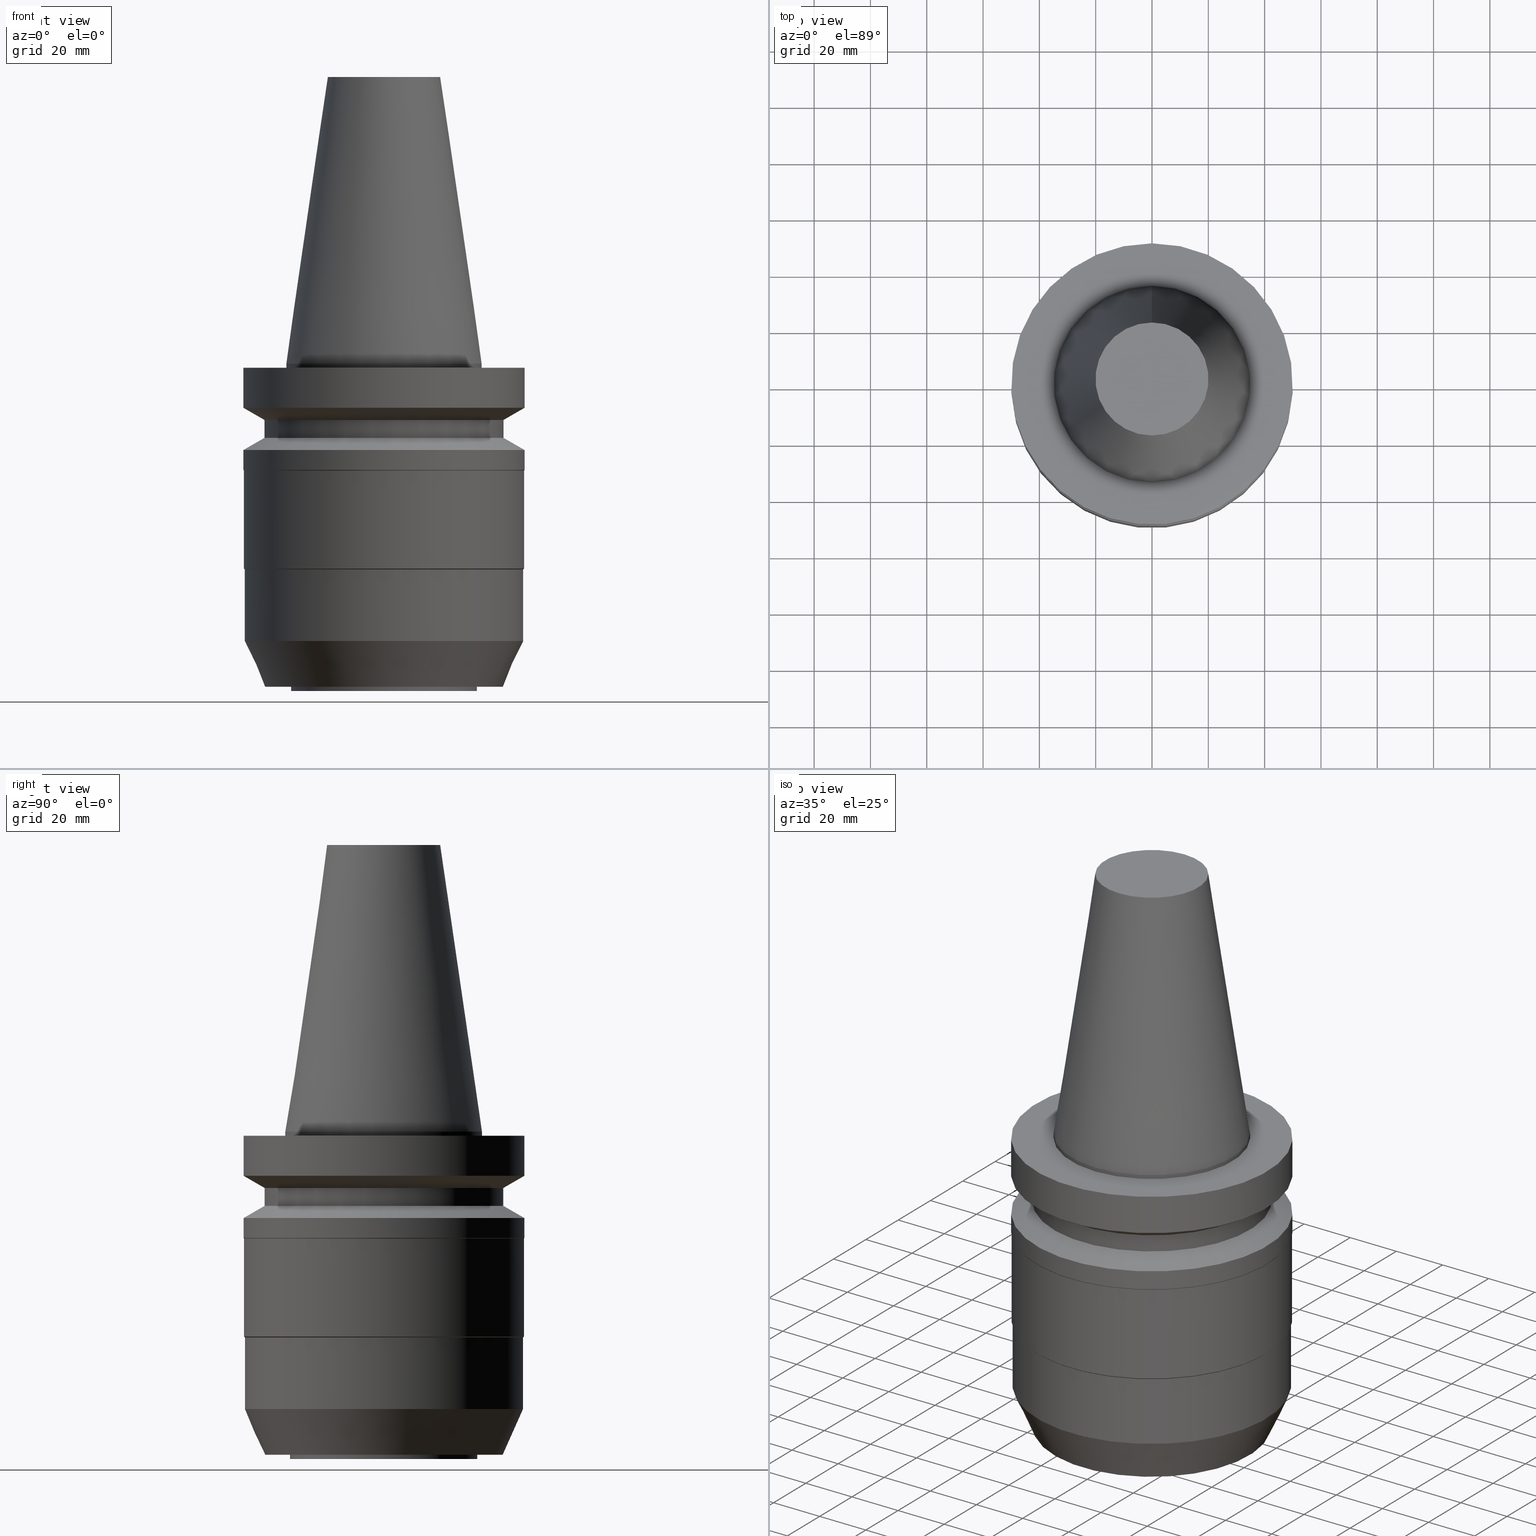
[diagram: canonical four-view strip — front | top / right | iso, engineering-drawing reading convention]
A machine part, canonical four-view strip (front | top / right | iso — engineering-drawing reading convention). The complete STEP part file that produces these views, byte-faithful:
ISO-10303-21;
HEADER;
FILE_DESCRIPTION((''),'1');
FILE_NAME('V:/90_\X2\53D65F9730C730FC30BF\X0\/00_\X2\6DE18DEF30C730FC30BF\X0\/ALL/BBT-BKUS\X2\FF76FF80FF9BFF78FF9E752852A05DE556F3\X0\201801/BBT50-MEGADS/BBT50-MEGA1.500DS-4.5.stp','2018-02-05T01:32:38',(''),(''),'Spatial Interop R21 SP3','Kubotek KeyCreator 2011 V10.0.2 (22737)',' ');
FILE_SCHEMA(('automotive_design'));
ENDSEC;
DATA;
#1=MECHANICAL_DESIGN_GEOMETRIC_PRESENTATION_REPRESENTATION(' ',(#10,#11,#12,#13,#14,#15,#16,#17,#18,#19,#20,#21,#22,#23,#24,#25,#26,#27,#28,#29,#30,#31,#32,#33,#34,#35,#36,#37,#38,#39,#40,#41,#42,#43),#6);
#2=PRODUCT_DEFINITION_CONTEXT('',#44,'design');
#3=APPLICATION_PROTOCOL_DEFINITION('INTERNATIONAL STANDARD','automotive_design',1994,#44);
#4=PRODUCT_CATEGORY_RELATIONSHIP('NONE','NONE',#45,#46);
#5=SHAPE_DEFINITION_REPRESENTATION(#47,#48);
#6= (GEOMETRIC_REPRESENTATION_CONTEXT(3)GLOBAL_UNCERTAINTY_ASSIGNED_CONTEXT((#51))GLOBAL_UNIT_ASSIGNED_CONTEXT((#53,#54,#55))REPRESENTATION_CONTEXT('NONE','WORKSPACE'));
#10=STYLED_ITEM('',(#57,#58),#59);
#11=STYLED_ITEM('',(#60,#61),#62);
#12=STYLED_ITEM('',(#63,#64),#65);
#13=STYLED_ITEM('',(#66,#67),#68);
#14=STYLED_ITEM('',(#69),#70);
#15=STYLED_ITEM('',(#71),#72);
#16=STYLED_ITEM('',(#73,#74),#75);
#17=STYLED_ITEM('',(#76,#77),#78);
#18=STYLED_ITEM('',(#79,#80),#81);
#19=STYLED_ITEM('',(#82),#83);
#20=STYLED_ITEM('',(#84),#85);
#21=STYLED_ITEM('',(#86,#87),#88);
#22=STYLED_ITEM('',(#89),#90);
#23=STYLED_ITEM('',(#91,#92),#93);
#24=STYLED_ITEM('',(#94,#95),#96);
#25=STYLED_ITEM('',(#97,#98),#99);
#26=STYLED_ITEM('',(#100),#101);
#27=STYLED_ITEM('',(#102,#103),#104);
#28=STYLED_ITEM('',(#105),#106);
#29=STYLED_ITEM('',(#107),#108);
#30=STYLED_ITEM('',(#109),#110);
#31=STYLED_ITEM('',(#111,#112),#113);
#32=STYLED_ITEM('',(#114,#115),#116);
#33=STYLED_ITEM('',(#117,#118),#119);
#34=STYLED_ITEM('',(#120),#121);
#35=STYLED_ITEM('',(#122),#123);
#36=STYLED_ITEM('',(#124),#125);
#37=STYLED_ITEM('',(#126),#127);
#38=STYLED_ITEM('',(#128,#129),#130);
#39=STYLED_ITEM('',(#131,#132),#133);
#40=STYLED_ITEM('',(#134),#135);
#41=STYLED_ITEM('',(#136),#137);
#42=STYLED_ITEM('',(#138),#139);
#43=STYLED_ITEM('',(#140,#141),#142);
#44=APPLICATION_CONTEXT(' ');
#45=PRODUCT_CATEGORY('part','NONE');
#46=PRODUCT_RELATED_PRODUCT_CATEGORY('detail',' ',(#143));
#47=PRODUCT_DEFINITION_SHAPE('NONE','NONE',#144);
#48=ADVANCED_BREP_SHAPE_REPRESENTATION('Unnamed[1]',(#93,#145),#6);
#51=UNCERTAINTY_MEASURE_WITH_UNIT(LENGTH_MEASURE(1.0E-006),#53,'','');
#53= (CONVERSION_BASED_UNIT('MILLIMETRE',#148)LENGTH_UNIT()NAMED_UNIT(#151));
#54= (NAMED_UNIT(#153)PLANE_ANGLE_UNIT()SI_UNIT($,.RADIAN.));
#55= (NAMED_UNIT(#153)SOLID_ANGLE_UNIT()SI_UNIT($,.STERADIAN.));
#57=PRESENTATION_STYLE_ASSIGNMENT((#159));
#58=PRESENTATION_STYLE_ASSIGNMENT((#160));
#59=ADVANCED_FACE('Unnamed[1]',(#161,#162),#163,.T.);
#60=PRESENTATION_STYLE_ASSIGNMENT((#164));
#61=PRESENTATION_STYLE_ASSIGNMENT((#165));
#62=ADVANCED_FACE('Unnamed[1]',(#166,#167),#168,.T.);
#63=PRESENTATION_STYLE_ASSIGNMENT((#169));
#64=PRESENTATION_STYLE_ASSIGNMENT((#170));
#65=ADVANCED_FACE('Unnamed[1]',(#171,#172),#173,.T.);
#66=PRESENTATION_STYLE_ASSIGNMENT((#174));
#67=PRESENTATION_STYLE_ASSIGNMENT((#175));
#68=ADVANCED_FACE('Unnamed[1]',(#176,#177),#178,.T.);
#69=PRESENTATION_STYLE_ASSIGNMENT((#179));
#70=EDGE_CURVE('Unnamed[1]',#180,#180,#181,.T.);
#71=PRESENTATION_STYLE_ASSIGNMENT((#182));
#72=EDGE_CURVE('Unnamed[1]',#183,#183,#184,.T.);
#73=PRESENTATION_STYLE_ASSIGNMENT((#185));
#74=PRESENTATION_STYLE_ASSIGNMENT((#186));
#75=ADVANCED_FACE('Unnamed[1]',(#187,#188),#189,.T.);
#76=PRESENTATION_STYLE_ASSIGNMENT((#190));
#77=PRESENTATION_STYLE_ASSIGNMENT((#191));
#78=ADVANCED_FACE('Unnamed[1]',(#192,#193),#194,.T.);
#79=PRESENTATION_STYLE_ASSIGNMENT((#195));
#80=PRESENTATION_STYLE_ASSIGNMENT((#196));
#81=ADVANCED_FACE('Unnamed[1]',(#197,#198),#199,.T.);
#82=PRESENTATION_STYLE_ASSIGNMENT((#200));
#83=EDGE_CURVE('Unnamed[1]',#201,#201,#202,.T.);
#84=PRESENTATION_STYLE_ASSIGNMENT((#203));
#85=EDGE_CURVE('Unnamed[1]',#204,#204,#205,.T.);
#86=PRESENTATION_STYLE_ASSIGNMENT((#206));
#87=PRESENTATION_STYLE_ASSIGNMENT((#207));
#88=ADVANCED_FACE('Unnamed[1]',(#208,#209),#210,.T.);
#89=PRESENTATION_STYLE_ASSIGNMENT((#211));
#90=EDGE_CURVE('Unnamed[1]',#212,#212,#213,.T.);
#91=PRESENTATION_STYLE_ASSIGNMENT((#214));
#92=PRESENTATION_STYLE_ASSIGNMENT((#215));
#93=MANIFOLD_SOLID_BREP('Unnamed[1]',#216);
#94=PRESENTATION_STYLE_ASSIGNMENT((#217));
#95=PRESENTATION_STYLE_ASSIGNMENT((#218));
#96=ADVANCED_FACE('Unnamed[1]',(#219,#220),#221,.T.);
#97=PRESENTATION_STYLE_ASSIGNMENT((#222));
#98=PRESENTATION_STYLE_ASSIGNMENT((#223));
#99=ADVANCED_FACE('Unnamed[1]',(#224,#225),#226,.T.);
#100=PRESENTATION_STYLE_ASSIGNMENT((#227));
#101=EDGE_CURVE('Unnamed[1]',#228,#228,#229,.T.);
#102=PRESENTATION_STYLE_ASSIGNMENT((#230));
#103=PRESENTATION_STYLE_ASSIGNMENT((#231));
#104=ADVANCED_FACE('Unnamed[1]',(#232,#233),#234,.T.);
#105=PRESENTATION_STYLE_ASSIGNMENT((#235));
#106=EDGE_CURVE('Unnamed[1]',#236,#236,#237,.T.);
#107=PRESENTATION_STYLE_ASSIGNMENT((#238));
#108=EDGE_CURVE('Unnamed[1]',#239,#239,#240,.T.);
#109=PRESENTATION_STYLE_ASSIGNMENT((#241));
#110=EDGE_CURVE('Unnamed[1]',#242,#242,#243,.T.);
#111=PRESENTATION_STYLE_ASSIGNMENT((#244));
#112=PRESENTATION_STYLE_ASSIGNMENT((#245));
#113=ADVANCED_FACE('Unnamed[1]',(#246,#247),#248,.T.);
#114=PRESENTATION_STYLE_ASSIGNMENT((#249));
#115=PRESENTATION_STYLE_ASSIGNMENT((#250));
#116=ADVANCED_FACE('Unnamed[1]',(#251),#252,.T.);
#117=PRESENTATION_STYLE_ASSIGNMENT((#253));
#118=PRESENTATION_STYLE_ASSIGNMENT((#254));
#119=ADVANCED_FACE('Unnamed[1]',(#255),#256,.T.);
#120=PRESENTATION_STYLE_ASSIGNMENT((#257));
#121=EDGE_CURVE('Unnamed[1]',#258,#258,#259,.T.);
#122=PRESENTATION_STYLE_ASSIGNMENT((#260));
#123=EDGE_CURVE('Unnamed[1]',#261,#261,#262,.T.);
#124=PRESENTATION_STYLE_ASSIGNMENT((#263));
#125=EDGE_CURVE('Unnamed[1]',#264,#264,#265,.T.);
#126=PRESENTATION_STYLE_ASSIGNMENT((#266));
#127=EDGE_CURVE('Unnamed[1]',#267,#267,#268,.T.);
#128=PRESENTATION_STYLE_ASSIGNMENT((#269));
#129=PRESENTATION_STYLE_ASSIGNMENT((#270));
#130=ADVANCED_FACE('Unnamed[1]',(#271,#272),#273,.T.);
#131=PRESENTATION_STYLE_ASSIGNMENT((#274));
#132=PRESENTATION_STYLE_ASSIGNMENT((#275));
#133=ADVANCED_FACE('Unnamed[1]',(#276,#277),#278,.T.);
#134=PRESENTATION_STYLE_ASSIGNMENT((#279));
#135=EDGE_CURVE('Unnamed[1]',#280,#280,#281,.T.);
#136=PRESENTATION_STYLE_ASSIGNMENT((#282));
#137=EDGE_CURVE('Unnamed[1]',#283,#283,#284,.T.);
#138=PRESENTATION_STYLE_ASSIGNMENT((#285));
#139=EDGE_CURVE('Unnamed[1]',#286,#286,#287,.T.);
#140=PRESENTATION_STYLE_ASSIGNMENT((#288));
#141=PRESENTATION_STYLE_ASSIGNMENT((#289));
#142=ADVANCED_FACE('Unnamed[1]',(#290,#291),#292,.T.);
#143=PRODUCT('Unnamed[1]','Unnamed[1]','PART-Unnamed[1]-DESC',(#293));
#144=PRODUCT_DEFINITION('NONE','NONE',#294,#2);
#145=AXIS2_PLACEMENT_3D('',#295,#296,#297);
#148=LENGTH_MEASURE_WITH_UNIT(LENGTH_MEASURE(1.0),#298);
#151=DIMENSIONAL_EXPONENTS(1.0,0.0,0.0,0.0,0.0,0.0,0.0);
#153=DIMENSIONAL_EXPONENTS(0.0,0.0,0.0,0.0,0.0,0.0,0.0);
#159=SURFACE_STYLE_USAGE(.BOTH.,#299);
#160=CURVE_STYLE('',#300,POSITIVE_LENGTH_MEASURE(1000.0),#301);
#161=FACE_BOUND('',#302,.T.);
#162=FACE_BOUND('',#303,.T.);
#163=CYLINDRICAL_SURFACE('',#304,50.0);
#164=SURFACE_STYLE_USAGE(.BOTH.,#305);
#165=CURVE_STYLE('',#306,POSITIVE_LENGTH_MEASURE(1000.0),#307);
#166=FACE_BOUND('',#308,.T.);
#167=FACE_BOUND('',#309,.T.);
#168=CONICAL_SURFACE('',#310,46.25,1.04719755108882);
#169=SURFACE_STYLE_USAGE(.BOTH.,#311);
#170=CURVE_STYLE('',#312,POSITIVE_LENGTH_MEASURE(1000.0),#313);
#171=FACE_BOUND('',#314,.T.);
#172=FACE_BOUND('',#315,.T.);
#173=CYLINDRICAL_SURFACE('',#316,49.5);
#174=SURFACE_STYLE_USAGE(.BOTH.,#317);
#175=CURVE_STYLE('',#318,POSITIVE_LENGTH_MEASURE(1000.0),#319);
#176=FACE_BOUND('',#320,.T.);
#177=FACE_OUTER_BOUND('',#321,.T.);
#178=PLANE('',#322);
#179=CURVE_STYLE('',#323,POSITIVE_LENGTH_MEASURE(1000.0),#324);
#180=VERTEX_POINT('',#325);
#181=CIRCLE('',#326,20.0791666651884);
#182=CURVE_STYLE('',#327,POSITIVE_LENGTH_MEASURE(1000.0),#328);
#183=VERTEX_POINT('',#329);
#184=CIRCLE('',#330,33.2431836657888);
#185=SURFACE_STYLE_USAGE(.BOTH.,#331);
#186=CURVE_STYLE('',#332,POSITIVE_LENGTH_MEASURE(1000.0),#333);
#187=FACE_OUTER_BOUND('',#334,.T.);
#188=FACE_BOUND('',#335,.T.);
#189=PLANE('',#336);
#190=SURFACE_STYLE_USAGE(.BOTH.,#337);
#191=CURVE_STYLE('',#338,POSITIVE_LENGTH_MEASURE(1000.0),#339);
#192=FACE_BOUND('',#340,.T.);
#193=FACE_BOUND('',#341,.T.);
#194=CONICAL_SURFACE('',#342,49.9249999999999,0.523598775597416);
#195=SURFACE_STYLE_USAGE(.BOTH.,#343);
#196=CURVE_STYLE('',#344,POSITIVE_LENGTH_MEASURE(1000.0),#345);
#197=FACE_BOUND('',#346,.T.);
#198=FACE_BOUND('',#347,.T.);
#199=CONICAL_SURFACE('',#348,49.6750000000002,0.785398163391571);
#200=CURVE_STYLE('',#349,POSITIVE_LENGTH_MEASURE(1000.0),#350);
#201=VERTEX_POINT('',#351);
#202=CIRCLE('',#352,50.0);
#203=CURVE_STYLE('',#353,POSITIVE_LENGTH_MEASURE(1000.0),#354);
#204=VERTEX_POINT('',#355);
#205=CIRCLE('',#356,49.4999999999999);
#206=SURFACE_STYLE_USAGE(.BOTH.,#357);
#207=CURVE_STYLE('',#358,POSITIVE_LENGTH_MEASURE(1000.0),#359);
#208=FACE_BOUND('',#360,.T.);
#209=FACE_BOUND('',#361,.T.);
#210=CONICAL_SURFACE('',#362,45.8809601935171,0.418879020478635);
#211=CURVE_STYLE('',#363,POSITIVE_LENGTH_MEASURE(1000.0),#364);
#212=VERTEX_POINT('',#365);
#213=CIRCLE('',#366,33.2431836657888);
#214=SURFACE_STYLE_USAGE(.BOTH.,#367);
#215=CURVE_STYLE('',#368,POSITIVE_LENGTH_MEASURE(1000.0),#369);
#216=CLOSED_SHELL('',(#119,#142,#104,#75,#59,#130,#133,#62,#113,#78,#96,#81,#65,#88,#68,#99,#116));
#217=SURFACE_STYLE_USAGE(.BOTH.,#370);
#218=CURVE_STYLE('',#371,POSITIVE_LENGTH_MEASURE(1000.0),#372);
#219=FACE_BOUND('',#373,.T.);
#220=FACE_BOUND('',#374,.T.);
#221=CYLINDRICAL_SURFACE('',#375,49.8500000000001);
#222=SURFACE_STYLE_USAGE(.BOTH.,#376);
#223=CURVE_STYLE('',#377,POSITIVE_LENGTH_MEASURE(1000.0),#378);
#224=FACE_BOUND('',#379,.T.);
#225=FACE_BOUND('',#380,.T.);
#226=CYLINDRICAL_SURFACE('',#381,33.2431836657888);
#227=CURVE_STYLE('',#382,POSITIVE_LENGTH_MEASURE(1000.0),#383);
#228=VERTEX_POINT('',#384);
#229=CIRCLE('',#385,50.0);
#230=SURFACE_STYLE_USAGE(.BOTH.,#386);
#231=CURVE_STYLE('',#387,POSITIVE_LENGTH_MEASURE(1000.0),#388);
#232=FACE_BOUND('',#389,.T.);
#233=FACE_BOUND('',#390,.T.);
#234=CYLINDRICAL_SURFACE('',#391,34.925);
#235=CURVE_STYLE('',#392,POSITIVE_LENGTH_MEASURE(1000.0),#393);
#236=VERTEX_POINT('',#394);
#237=CIRCLE('',#395,49.5);
#238=CURVE_STYLE('',#396,POSITIVE_LENGTH_MEASURE(1000.0),#397);
#239=VERTEX_POINT('',#398);
#240=CIRCLE('',#399,49.8500000000005);
#241=CURVE_STYLE('',#400,POSITIVE_LENGTH_MEASURE(1000.0),#401);
#242=VERTEX_POINT('',#402);
#243=CIRCLE('',#403,50.0);
#244=SURFACE_STYLE_USAGE(.BOTH.,#404);
#245=CURVE_STYLE('',#405,POSITIVE_LENGTH_MEASURE(1000.0),#406);
#246=FACE_BOUND('',#407,.T.);
#247=FACE_BOUND('',#408,.T.);
#248=CYLINDRICAL_SURFACE('',#409,50.0);
#249=SURFACE_STYLE_USAGE(.BOTH.,#410);
#250=CURVE_STYLE('',#411,POSITIVE_LENGTH_MEASURE(1000.0),#412);
#251=FACE_OUTER_BOUND('',#413,.T.);
#252=PLANE('',#414);
#253=SURFACE_STYLE_USAGE(.BOTH.,#415);
#254=CURVE_STYLE('',#416,POSITIVE_LENGTH_MEASURE(1000.0),#417);
#255=FACE_OUTER_BOUND('',#418,.T.);
#256=PLANE('',#419);
#257=CURVE_STYLE('',#420,POSITIVE_LENGTH_MEASURE(1000.0),#421);
#258=VERTEX_POINT('',#422);
#259=CIRCLE('',#423,50.0);
#260=CURVE_STYLE('',#424,POSITIVE_LENGTH_MEASURE(1000.0),#425);
#261=VERTEX_POINT('',#426);
#262=CIRCLE('',#427,42.5);
#263=CURVE_STYLE('',#428,POSITIVE_LENGTH_MEASURE(1000.0),#429);
#264=VERTEX_POINT('',#430);
#265=CIRCLE('',#431,42.2619203870341);
#266=CURVE_STYLE('',#432,POSITIVE_LENGTH_MEASURE(1000.0),#433);
#267=VERTEX_POINT('',#434);
#268=CIRCLE('',#435,34.925);
#269=SURFACE_STYLE_USAGE(.BOTH.,#436);
#270=CURVE_STYLE('',#437,POSITIVE_LENGTH_MEASURE(1000.0),#438);
#271=FACE_BOUND('',#439,.T.);
#272=FACE_BOUND('',#440,.T.);
#273=CONICAL_SURFACE('',#441,46.25,1.04719755108882);
#274=SURFACE_STYLE_USAGE(.BOTH.,#442);
#275=CURVE_STYLE('',#443,POSITIVE_LENGTH_MEASURE(1000.0),#444);
#276=FACE_BOUND('',#445,.T.);
#277=FACE_BOUND('',#446,.T.);
#278=CYLINDRICAL_SURFACE('',#447,42.5);
#279=CURVE_STYLE('',#448,POSITIVE_LENGTH_MEASURE(1000.0),#449);
#280=VERTEX_POINT('',#450);
#281=CIRCLE('',#451,34.925);
#282=CURVE_STYLE('',#452,POSITIVE_LENGTH_MEASURE(1000.0),#453);
#283=VERTEX_POINT('',#454);
#284=CIRCLE('',#455,42.5);
#285=CURVE_STYLE('',#456,POSITIVE_LENGTH_MEASURE(1000.0),#457);
#286=VERTEX_POINT('',#458);
#287=CIRCLE('',#459,49.8499999999998);
#288=SURFACE_STYLE_USAGE(.BOTH.,#460);
#289=CURVE_STYLE('',#461,POSITIVE_LENGTH_MEASURE(1000.0),#462);
#290=FACE_BOUND('',#463,.T.);
#291=FACE_BOUND('',#464,.T.);
#292=CONICAL_SURFACE('',#465,27.5020833325942,0.144812498253157);
#293=PRODUCT_CONTEXT('',#44,'mechanical');
#294=PRODUCT_DEFINITION_FORMATION_WITH_SPECIFIED_SOURCE(' ','NONE',#143,.NOT_KNOWN.);
#295=CARTESIAN_POINT('',(0.0,0.0,0.0));
#296=DIRECTION('',(0.0,0.0,1.0));
#297=DIRECTION('',(1.0,0.0,0.0));
#298= (NAMED_UNIT(#151)LENGTH_UNIT()SI_UNIT(.MILLI.,.METRE.));
#299=SURFACE_SIDE_STYLE('',(#467));
#300=DRAUGHTING_PRE_DEFINED_CURVE_FONT('continuous');
#301=COLOUR_RGB('',0.0,1.0,0.0);
#302=EDGE_LOOP('',(#468));
#303=EDGE_LOOP('',(#469));
#304=AXIS2_PLACEMENT_3D('',#470,#471,#472);
#305=SURFACE_SIDE_STYLE('',(#473));
#306=DRAUGHTING_PRE_DEFINED_CURVE_FONT('continuous');
#307=COLOUR_RGB('',0.0,1.0,0.0);
#308=EDGE_LOOP('',(#474));
#309=EDGE_LOOP('',(#475));
#310=AXIS2_PLACEMENT_3D('',#476,#477,#478);
#311=SURFACE_SIDE_STYLE('',(#479));
#312=DRAUGHTING_PRE_DEFINED_CURVE_FONT('continuous');
#313=COLOUR_RGB('',0.0,1.0,0.0);
#314=EDGE_LOOP('',(#480));
#315=EDGE_LOOP('',(#481));
#316=AXIS2_PLACEMENT_3D('',#482,#483,#484);
#317=SURFACE_SIDE_STYLE('',(#485));
#318=DRAUGHTING_PRE_DEFINED_CURVE_FONT('continuous');
#319=COLOUR_RGB('',0.0,1.0,0.0);
#320=EDGE_LOOP('',(#486));
#321=EDGE_LOOP('',(#487));
#322=AXIS2_PLACEMENT_3D('',#488,#489,#490);
#323=DRAUGHTING_PRE_DEFINED_CURVE_FONT('continuous');
#324=COLOUR_RGB('',0.0,1.0,0.0);
#325=CARTESIAN_POINT('',(-6.23345220766003E-015,20.0791666651884,101.8));
#326=AXIS2_PLACEMENT_3D('',#491,#492,#493);
#327=DRAUGHTING_PRE_DEFINED_CURVE_FONT('continuous');
#328=COLOUR_RGB('',0.0,1.0,0.0);
#329=CARTESIAN_POINT('',(7.02947262710581E-015,33.2431836657888,-114.8));
#330=AXIS2_PLACEMENT_3D('',#494,#495,#496);
#331=SURFACE_SIDE_STYLE('',(#497));
#332=DRAUGHTING_PRE_DEFINED_CURVE_FONT('continuous');
#333=COLOUR_RGB('',0.0,1.0,0.0);
#334=EDGE_LOOP('',(#498));
#335=EDGE_LOOP('',(#499));
#336=AXIS2_PLACEMENT_3D('',#500,#501,#502);
#337=SURFACE_SIDE_STYLE('',(#503));
#338=DRAUGHTING_PRE_DEFINED_CURVE_FONT('continuous');
#339=COLOUR_RGB('',0.0,1.0,0.0);
#340=EDGE_LOOP('',(#504));
#341=EDGE_LOOP('',(#505));
#342=AXIS2_PLACEMENT_3D('',#506,#507,#508);
#343=SURFACE_SIDE_STYLE('',(#509));
#344=DRAUGHTING_PRE_DEFINED_CURVE_FONT('continuous');
#345=COLOUR_RGB('',0.0,1.0,0.0);
#346=EDGE_LOOP('',(#510));
#347=EDGE_LOOP('',(#511));
#348=AXIS2_PLACEMENT_3D('',#512,#513,#514);
#349=DRAUGHTING_PRE_DEFINED_CURVE_FONT('continuous');
#350=COLOUR_RGB('',0.0,1.0,0.0);
#351=CARTESIAN_POINT('',(2.31092028979915E-015,50.0,-37.7401923788655));
#352=AXIS2_PLACEMENT_3D('',#515,#516,#517);
#353=DRAUGHTING_PRE_DEFINED_CURVE_FONT('continuous');
#354=COLOUR_RGB('',0.0,1.0,0.0);
#355=CARTESIAN_POINT('',(4.4791456678817E-015,49.4999999999999,-73.1500000000042));
#356=AXIS2_PLACEMENT_3D('',#518,#519,#520);
#357=SURFACE_SIDE_STYLE('',(#521));
#358=DRAUGHTING_PRE_DEFINED_CURVE_FONT('continuous');
#359=COLOUR_RGB('',0.0,1.0,0.0);
#360=EDGE_LOOP('',(#522));
#361=EDGE_LOOP('',(#523));
#362=AXIS2_PLACEMENT_3D('',#524,#525,#526);
#363=DRAUGHTING_PRE_DEFINED_CURVE_FONT('continuous');
#364=COLOUR_RGB('',0.0,1.0,0.0);
#365=CARTESIAN_POINT('',(7.12132113704186E-015,33.2431836657888,-116.3));
#366=AXIS2_PLACEMENT_3D('',#527,#528,#529);
#367=SURFACE_SIDE_STYLE('',(#530));
#368=DRAUGHTING_PRE_DEFINED_CURVE_FONT('continuous');
#369=COLOUR_RGB('',0.0,1.0,0.0);
#370=SURFACE_SIDE_STYLE('',(#531));
#371=DRAUGHTING_PRE_DEFINED_CURVE_FONT('continuous');
#372=COLOUR_RGB('',0.0,1.0,0.0);
#373=EDGE_LOOP('',(#532));
#374=EDGE_LOOP('',(#533));
#375=AXIS2_PLACEMENT_3D('',#534,#535,#536);
#376=SURFACE_SIDE_STYLE('',(#537));
#377=DRAUGHTING_PRE_DEFINED_CURVE_FONT('continuous');
#378=COLOUR_RGB('',0.0,1.0,0.0);
#379=EDGE_LOOP('',(#538));
#380=EDGE_LOOP('',(#539));
#381=AXIS2_PLACEMENT_3D('',#540,#541,#542);
#382=DRAUGHTING_PRE_DEFINED_CURVE_FONT('continuous');
#383=COLOUR_RGB('',0.0,1.0,0.0);
#384=CARTESIAN_POINT('',(9.61347737330674E-016,50.0,-15.7));
#385=AXIS2_PLACEMENT_3D('',#543,#544,#545);
#386=SURFACE_SIDE_STYLE('',(#546));
#387=DRAUGHTING_PRE_DEFINED_CURVE_FONT('continuous');
#388=COLOUR_RGB('',0.0,1.0,0.0);
#389=EDGE_LOOP('',(#547));
#390=EDGE_LOOP('',(#548));
#391=AXIS2_PLACEMENT_3D('',#549,#550,#551);
#392=DRAUGHTING_PRE_DEFINED_CURVE_FONT('continuous');
#393=COLOUR_RGB('',0.0,1.0,0.0);
#394=CARTESIAN_POINT('',(6.03401890607593E-015,49.5,-98.543007016832));
#395=AXIS2_PLACEMENT_3D('',#552,#553,#554);
#396=DRAUGHTING_PRE_DEFINED_CURVE_FONT('continuous');
#397=COLOUR_RGB('',0.0,1.0,0.0);
#398=CARTESIAN_POINT('',(4.45771434889633E-015,49.8500000000005,-72.7999999999994));
#399=AXIS2_PLACEMENT_3D('',#555,#556,#557);
#400=DRAUGHTING_PRE_DEFINED_CURVE_FONT('continuous');
#401=COLOUR_RGB('',0.0,1.0,0.0);
#402=CARTESIAN_POINT('',(9.18485099360509E-017,50.0,-1.49999999999999));
#403=AXIS2_PLACEMENT_3D('',#558,#559,#560);
#404=SURFACE_SIDE_STYLE('',(#561));
#405=DRAUGHTING_PRE_DEFINED_CURVE_FONT('continuous');
#406=COLOUR_RGB('',0.0,1.0,0.0);
#407=EDGE_LOOP('',(#562));
#408=EDGE_LOOP('',(#563));
#409=AXIS2_PLACEMENT_3D('',#564,#565,#566);
#410=SURFACE_SIDE_STYLE('',(#567));
#411=DRAUGHTING_PRE_DEFINED_CURVE_FONT('continuous');
#412=COLOUR_RGB('',0.0,1.0,0.0);
#413=EDGE_LOOP('',(#568));
#414=AXIS2_PLACEMENT_3D('',#569,#570,#571);
#415=SURFACE_SIDE_STYLE('',(#572));
#416=DRAUGHTING_PRE_DEFINED_CURVE_FONT('continuous');
#417=COLOUR_RGB('',0.0,1.0,0.0);
#418=EDGE_LOOP('',(#573));
#419=AXIS2_PLACEMENT_3D('',#574,#575,#576);
#420=DRAUGHTING_PRE_DEFINED_CURVE_FONT('continuous');
#421=COLOUR_RGB('',0.0,1.0,0.0);
#422=CARTESIAN_POINT('',(1.87983283669119E-015,50.0,-30.7000000000001));
#423=AXIS2_PLACEMENT_3D('',#577,#578,#579);
#424=DRAUGHTING_PRE_DEFINED_CURVE_FONT('continuous');
#425=COLOUR_RGB('',0.0,1.0,0.0);
#426=CARTESIAN_POINT('',(1.61468902694397E-015,42.5,-26.3698729800001));
#427=AXIS2_PLACEMENT_3D('',#580,#581,#582);
#428=DRAUGHTING_PRE_DEFINED_CURVE_FONT('continuous');
#429=COLOUR_RGB('',0.0,1.0,0.0);
#430=CARTESIAN_POINT('',(7.02947262710581E-015,42.2619203870341,-114.8));
#431=AXIS2_PLACEMENT_3D('',#583,#584,#585);
#432=DRAUGHTING_PRE_DEFINED_CURVE_FONT('continuous');
#433=COLOUR_RGB('',0.0,1.0,0.0);
#434=CARTESIAN_POINT('',(9.18485099360511E-017,34.925,-1.5));
#435=AXIS2_PLACEMENT_3D('',#586,#587,#588);
#436=SURFACE_SIDE_STYLE('',(#589));
#437=DRAUGHTING_PRE_DEFINED_CURVE_FONT('continuous');
#438=COLOUR_RGB('',0.0,1.0,0.0);
#439=EDGE_LOOP('',(#590));
#440=EDGE_LOOP('',(#591));
#441=AXIS2_PLACEMENT_3D('',#592,#593,#594);
#442=SURFACE_SIDE_STYLE('',(#595));
#443=DRAUGHTING_PRE_DEFINED_CURVE_FONT('continuous');
#444=COLOUR_RGB('',0.0,1.0,0.0);
#445=EDGE_LOOP('',(#596));
#446=EDGE_LOOP('',(#597));
#447=AXIS2_PLACEMENT_3D('',#598,#599,#600);
#448=DRAUGHTING_PRE_DEFINED_CURVE_FONT('continuous');
#449=COLOUR_RGB('',0.0,1.0,0.0);
#450=CARTESIAN_POINT('',(-4.30483861169435E-031,34.925,4.27707894602213E-015));
#451=AXIS2_PLACEMENT_3D('',#601,#602,#603);
#452=DRAUGHTING_PRE_DEFINED_CURVE_FONT('continuous');
#453=COLOUR_RGB('',0.0,1.0,0.0);
#454=CARTESIAN_POINT('',(1.2264915470779E-015,42.5,-20.03012702));
#455=AXIS2_PLACEMENT_3D('',#604,#605,#606);
#456=DRAUGHTING_PRE_DEFINED_CURVE_FONT('continuous');
#457=COLOUR_RGB('',0.0,1.0,0.0);
#458=CARTESIAN_POINT('',(2.32682891838008E-015,49.8499999999998,-38.0000000000018));
#459=AXIS2_PLACEMENT_3D('',#607,#608,#609);
#460=SURFACE_SIDE_STYLE('',(#610));
#461=DRAUGHTING_PRE_DEFINED_CURVE_FONT('continuous');
#462=COLOUR_RGB('',0.0,1.0,0.0);
#463=EDGE_LOOP('',(#611));
#464=EDGE_LOOP('',(#612));
#465=AXIS2_PLACEMENT_3D('',#613,#614,#615);
#467=SURFACE_STYLE_FILL_AREA(#616);
#468=ORIENTED_EDGE('',*,*,#101,.F.);
#469=ORIENTED_EDGE('',*,*,#110,.T.);
#470=CARTESIAN_POINT('',(5.26598123633363E-016,1.05319624726673E-015,-8.60000000000002));
#471=DIRECTION('',(6.12323399573677E-017,1.22464679914735E-016,-1.0));
#472=DIRECTION('',(-1.23259516440783E-032,1.0,1.22464679914735E-016));
#473=SURFACE_STYLE_FILL_AREA(#617);
#474=ORIENTED_EDGE('',*,*,#121,.F.);
#475=ORIENTED_EDGE('',*,*,#123,.T.);
#476=CARTESIAN_POINT('',(1.74726093181758E-015,3.49452186363516E-015,-28.5349364900001));
#477=DIRECTION('',(6.12323399573676E-017,1.22464679914735E-016,-1.0));
#478=DIRECTION('',(-1.23259516440783E-032,1.0,1.22464679914735E-016));
#479=SURFACE_STYLE_FILL_AREA(#618);
#480=ORIENTED_EDGE('',*,*,#106,.F.);
#481=ORIENTED_EDGE('',*,*,#85,.T.);
#482=CARTESIAN_POINT('',(5.25658228697881E-015,1.05131645739576E-014,-85.8465035084181));
#483=DIRECTION('',(6.12323399573677E-017,1.22464679914735E-016,-1.0));
#484=DIRECTION('',(-1.23259516440783E-032,1.0,1.22464679914735E-016));
#485=SURFACE_STYLE_FILL_AREA(#619);
#486=ORIENTED_EDGE('',*,*,#72,.F.);
#487=ORIENTED_EDGE('',*,*,#125,.T.);
#488=CARTESIAN_POINT('',(7.02947262710581E-015,37.7525520264115,-114.8));
#489=DIRECTION('',(6.12323399573677E-017,1.22464679914735E-016,-1.0));
#490=DIRECTION('',(-1.23259516440783E-032,1.0,1.22464679914735E-016));
#491=CARTESIAN_POINT('',(-6.23345220766003E-015,-1.24669044153201E-014,101.8));
#492=DIRECTION('',(6.12323399573677E-017,1.22464679914735E-016,-1.0));
#493=DIRECTION('',(-1.23259516440783E-032,1.0,1.22464679914735E-016));
#494=CARTESIAN_POINT('',(7.02947262710581E-015,1.40589452542116E-014,-114.8));
#495=DIRECTION('',(6.12323399573676E-017,1.22464679914735E-016,-1.0));
#496=DIRECTION('',(-1.23259516440783E-032,1.0,1.22464679914735E-016));
#497=SURFACE_STYLE_FILL_AREA(#620);
#498=ORIENTED_EDGE('',*,*,#110,.F.);
#499=ORIENTED_EDGE('',*,*,#127,.T.);
#500=CARTESIAN_POINT('',(9.1848509936051E-017,42.4625,-1.49999999999999));
#501=DIRECTION('',(-6.12323399573677E-017,-1.22464679914735E-016,1.0));
#502=DIRECTION('',(1.23259516440783E-032,-1.0,-1.22464679914735E-016));
#503=SURFACE_STYLE_FILL_AREA(#621);
#504=ORIENTED_EDGE('',*,*,#139,.F.);
#505=ORIENTED_EDGE('',*,*,#83,.T.);
#506=CARTESIAN_POINT('',(2.31887460408962E-015,4.63774920817923E-015,-37.8700961894337));
#507=DIRECTION('',(-6.12323399573677E-017,-1.22464679914735E-016,1.0));
#508=DIRECTION('',(-1.23259516440783E-032,1.0,1.22464679914735E-016));
#509=SURFACE_STYLE_FILL_AREA(#622);
#510=ORIENTED_EDGE('',*,*,#85,.F.);
#511=ORIENTED_EDGE('',*,*,#108,.T.);
#512=CARTESIAN_POINT('',(4.46843000838902E-015,8.93686001677803E-015,-72.9750000000018));
#513=DIRECTION('',(-6.12323399573677E-017,-1.22464679914735E-016,1.0));
#514=DIRECTION('',(-1.23259516440783E-032,1.0,1.22464679914735E-016));
#515=CARTESIAN_POINT('',(2.31092028979915E-015,4.6218405795983E-015,-37.7401923788655));
#516=DIRECTION('',(6.12323399573677E-017,1.22464679914735E-016,-1.0));
#517=DIRECTION('',(-1.23259516440783E-032,1.0,1.22464679914735E-016));
#518=CARTESIAN_POINT('',(4.4791456678817E-015,8.9582913357634E-015,-73.1500000000042));
#519=DIRECTION('',(6.12323399573676E-017,1.22464679914735E-016,-1.0));
#520=DIRECTION('',(-1.23259516440783E-032,1.0,1.22464679914735E-016));
#521=SURFACE_STYLE_FILL_AREA(#623);
#522=ORIENTED_EDGE('',*,*,#125,.F.);
#523=ORIENTED_EDGE('',*,*,#106,.T.);
#524=CARTESIAN_POINT('',(6.53174576659087E-015,1.30634915331817E-014,-106.671503508416));
#525=DIRECTION('',(-6.12323399573677E-017,-1.22464679914735E-016,1.0));
#526=DIRECTION('',(-1.23259516440783E-032,1.0,1.22464679914735E-016));
#527=CARTESIAN_POINT('',(7.12132113704186E-015,1.42426422740837E-014,-116.3));
#528=DIRECTION('',(6.12323399573676E-017,1.22464679914735E-016,-1.0));
#529=DIRECTION('',(-1.23259516440783E-032,1.0,1.22464679914735E-016));
#530=SURFACE_STYLE_FILL_AREA(#624);
#531=SURFACE_STYLE_FILL_AREA(#625);
#532=ORIENTED_EDGE('',*,*,#108,.F.);
#533=ORIENTED_EDGE('',*,*,#139,.T.);
#534=CARTESIAN_POINT('',(3.39227163363821E-015,6.78454326727641E-015,-55.4000000000006));
#535=DIRECTION('',(6.12323399573677E-017,1.22464679914735E-016,-1.0));
#536=DIRECTION('',(-1.23259516440783E-032,1.0,1.22464679914735E-016));
#537=SURFACE_STYLE_FILL_AREA(#626);
#538=ORIENTED_EDGE('',*,*,#90,.F.);
#539=ORIENTED_EDGE('',*,*,#72,.T.);
#540=CARTESIAN_POINT('',(7.07539688207383E-015,1.41507937641477E-014,-115.55));
#541=DIRECTION('',(6.12323399573676E-017,1.22464679914735E-016,-1.0));
#542=DIRECTION('',(-1.23259516440783E-032,1.0,1.22464679914735E-016));
#543=CARTESIAN_POINT('',(9.61347737330675E-016,1.92269547466135E-015,-15.7));
#544=DIRECTION('',(6.12323399573677E-017,1.22464679914735E-016,-1.0));
#545=DIRECTION('',(-1.23259516440783E-032,1.0,1.22464679914735E-016));
#546=SURFACE_STYLE_FILL_AREA(#627);
#547=ORIENTED_EDGE('',*,*,#127,.F.);
#548=ORIENTED_EDGE('',*,*,#135,.T.);
#549=CARTESIAN_POINT('',(4.59242549680257E-017,9.18485099360515E-017,-0.75));
#550=DIRECTION('',(6.12323399573677E-017,1.22464679914735E-016,-1.0));
#551=DIRECTION('',(-1.23259516440783E-032,1.0,1.22464679914735E-016));
#552=CARTESIAN_POINT('',(6.03401890607593E-015,1.20680378121518E-014,-98.543007016832));
#553=DIRECTION('',(6.12323399573677E-017,1.22464679914735E-016,-1.0));
#554=DIRECTION('',(-1.23259516440783E-032,1.0,1.22464679914735E-016));
#555=CARTESIAN_POINT('',(4.45771434889633E-015,8.91542869779266E-015,-72.7999999999994));
#556=DIRECTION('',(6.12323399573677E-017,1.22464679914735E-016,-1.0));
#557=DIRECTION('',(-1.23259516440783E-032,1.0,1.22464679914735E-016));
#558=CARTESIAN_POINT('',(9.18485099360515E-017,1.83697019872103E-016,-1.5));
#559=DIRECTION('',(6.12323399573677E-017,1.22464679914735E-016,-1.0));
#560=DIRECTION('',(-1.23259516440783E-032,1.0,1.22464679914735E-016));
#561=SURFACE_STYLE_FILL_AREA(#628);
#562=ORIENTED_EDGE('',*,*,#83,.F.);
#563=ORIENTED_EDGE('',*,*,#121,.T.);
#564=CARTESIAN_POINT('',(2.09537656324517E-015,4.19075312649034E-015,-34.2200961894328));
#565=DIRECTION('',(6.12323399573677E-017,1.22464679914735E-016,-1.0));
#566=DIRECTION('',(-1.23259516440783E-032,1.0,1.22464679914735E-016));
#567=SURFACE_STYLE_FILL_AREA(#629);
#568=ORIENTED_EDGE('',*,*,#90,.T.);
#569=CARTESIAN_POINT('',(7.12132113704186E-015,16.6215918328944,-116.3));
#570=DIRECTION('',(6.12323399573677E-017,1.22464679914735E-016,-1.0));
#571=DIRECTION('',(-1.23259516440783E-032,1.0,1.22464679914735E-016));
#572=SURFACE_STYLE_FILL_AREA(#630);
#573=ORIENTED_EDGE('',*,*,#70,.F.);
#574=CARTESIAN_POINT('',(-6.23345220766003E-015,10.0395833325942,101.8));
#575=DIRECTION('',(-6.12323399573677E-017,-1.22464679914735E-016,1.0));
#576=DIRECTION('',(1.23259516440783E-032,-1.0,-1.22464679914735E-016));
#577=CARTESIAN_POINT('',(1.87983283669119E-015,3.75966567338238E-015,-30.7000000000001));
#578=DIRECTION('',(6.12323399573677E-017,1.22464679914735E-016,-1.0));
#579=DIRECTION('',(-1.23259516440783E-032,1.0,1.22464679914735E-016));
#580=CARTESIAN_POINT('',(1.61468902694397E-015,3.22937805388794E-015,-26.3698729800001));
#581=DIRECTION('',(6.12323399573677E-017,1.22464679914735E-016,-1.0));
#582=DIRECTION('',(-1.23259516440783E-032,1.0,1.22464679914735E-016));
#583=CARTESIAN_POINT('',(7.02947262710581E-015,1.40589452542116E-014,-114.8));
#584=DIRECTION('',(6.12323399573677E-017,1.22464679914735E-016,-1.0));
#585=DIRECTION('',(-1.23259516440783E-032,1.0,1.22464679914735E-016));
#586=CARTESIAN_POINT('',(9.18485099360515E-017,1.83697019872103E-016,-1.5));
#587=DIRECTION('',(6.12323399573677E-017,1.22464679914735E-016,-1.0));
#588=DIRECTION('',(-1.23259516440783E-032,1.0,1.22464679914735E-016));
#589=SURFACE_STYLE_FILL_AREA(#631);
#590=ORIENTED_EDGE('',*,*,#137,.F.);
#591=ORIENTED_EDGE('',*,*,#101,.T.);
#592=CARTESIAN_POINT('',(1.09391964220429E-015,2.18783928440857E-015,-17.86506351));
#593=DIRECTION('',(-6.12323399573676E-017,-1.22464679914735E-016,1.0));
#594=DIRECTION('',(-1.23259516440783E-032,1.0,1.22464679914735E-016));
#595=SURFACE_STYLE_FILL_AREA(#632);
#596=ORIENTED_EDGE('',*,*,#123,.F.);
#597=ORIENTED_EDGE('',*,*,#137,.T.);
#598=CARTESIAN_POINT('',(1.42059028701093E-015,2.84118057402186E-015,-23.2));
#599=DIRECTION('',(6.12323399573677E-017,1.22464679914735E-016,-1.0));
#600=DIRECTION('',(-1.23259516440783E-032,1.0,1.22464679914735E-016));
#601=CARTESIAN_POINT('',(0.0,0.0,0.0));
#602=DIRECTION('',(6.12323399573677E-017,1.22464679914735E-016,-1.0));
#603=DIRECTION('',(-1.23259516440783E-032,1.0,1.22464679914735E-016));
#604=CARTESIAN_POINT('',(1.2264915470779E-015,2.45298309415579E-015,-20.03012702));
#605=DIRECTION('',(6.12323399573677E-017,1.22464679914735E-016,-1.0));
#606=DIRECTION('',(-1.23259516440783E-032,1.0,1.22464679914735E-016));
#607=CARTESIAN_POINT('',(2.32682891838008E-015,4.65365783676016E-015,-38.0000000000018));
#608=DIRECTION('',(6.12323399573677E-017,1.22464679914735E-016,-1.0));
#609=DIRECTION('',(-1.23259516440783E-032,1.0,1.22464679914735E-016));
#610=SURFACE_STYLE_FILL_AREA(#633);
#611=ORIENTED_EDGE('',*,*,#135,.F.);
#612=ORIENTED_EDGE('',*,*,#70,.T.);
#613=CARTESIAN_POINT('',(-3.11672610383001E-015,-6.23345220766003E-015,50.9));
#614=DIRECTION('',(6.12323399573677E-017,1.22464679914735E-016,-1.0));
#615=DIRECTION('',(-1.23259516440783E-032,1.0,1.22464679914735E-016));
#616=FILL_AREA_STYLE('',(#634));
#617=FILL_AREA_STYLE('',(#635));
#618=FILL_AREA_STYLE('',(#636));
#619=FILL_AREA_STYLE('',(#637));
#620=FILL_AREA_STYLE('',(#638));
#621=FILL_AREA_STYLE('',(#639));
#622=FILL_AREA_STYLE('',(#640));
#623=FILL_AREA_STYLE('',(#641));
#624=FILL_AREA_STYLE('',(#642));
#625=FILL_AREA_STYLE('',(#643));
#626=FILL_AREA_STYLE('',(#644));
#627=FILL_AREA_STYLE('',(#645));
#628=FILL_AREA_STYLE('',(#646));
#629=FILL_AREA_STYLE('',(#647));
#630=FILL_AREA_STYLE('',(#648));
#631=FILL_AREA_STYLE('',(#649));
#632=FILL_AREA_STYLE('',(#650));
#633=FILL_AREA_STYLE('',(#651));
#634=FILL_AREA_STYLE_COLOUR('',#652);
#635=FILL_AREA_STYLE_COLOUR('',#653);
#636=FILL_AREA_STYLE_COLOUR('',#654);
#637=FILL_AREA_STYLE_COLOUR('',#655);
#638=FILL_AREA_STYLE_COLOUR('',#656);
#639=FILL_AREA_STYLE_COLOUR('',#657);
#640=FILL_AREA_STYLE_COLOUR('',#658);
#641=FILL_AREA_STYLE_COLOUR('',#659);
#642=FILL_AREA_STYLE_COLOUR('',#660);
#643=FILL_AREA_STYLE_COLOUR('',#661);
#644=FILL_AREA_STYLE_COLOUR('',#662);
#645=FILL_AREA_STYLE_COLOUR('',#663);
#646=FILL_AREA_STYLE_COLOUR('',#664);
#647=FILL_AREA_STYLE_COLOUR('',#665);
#648=FILL_AREA_STYLE_COLOUR('',#666);
#649=FILL_AREA_STYLE_COLOUR('',#667);
#650=FILL_AREA_STYLE_COLOUR('',#668);
#651=FILL_AREA_STYLE_COLOUR('',#669);
#652=COLOUR_RGB('',0.0,1.0,0.0);
#653=COLOUR_RGB('',0.0,1.0,0.0);
#654=COLOUR_RGB('',0.0,1.0,0.0);
#655=COLOUR_RGB('',0.0,1.0,0.0);
#656=COLOUR_RGB('',0.0,1.0,0.0);
#657=COLOUR_RGB('',0.0,1.0,0.0);
#658=COLOUR_RGB('',0.0,1.0,0.0);
#659=COLOUR_RGB('',0.0,1.0,0.0);
#660=COLOUR_RGB('',0.0,1.0,0.0);
#661=COLOUR_RGB('',0.0,1.0,0.0);
#662=COLOUR_RGB('',0.0,1.0,0.0);
#663=COLOUR_RGB('',0.0,1.0,0.0);
#664=COLOUR_RGB('',0.0,1.0,0.0);
#665=COLOUR_RGB('',0.0,1.0,0.0);
#666=COLOUR_RGB('',0.0,1.0,0.0);
#667=COLOUR_RGB('',0.0,1.0,0.0);
#668=COLOUR_RGB('',0.0,1.0,0.0);
#669=COLOUR_RGB('',0.0,1.0,0.0);
ENDSEC;
END-ISO-10303-21;
